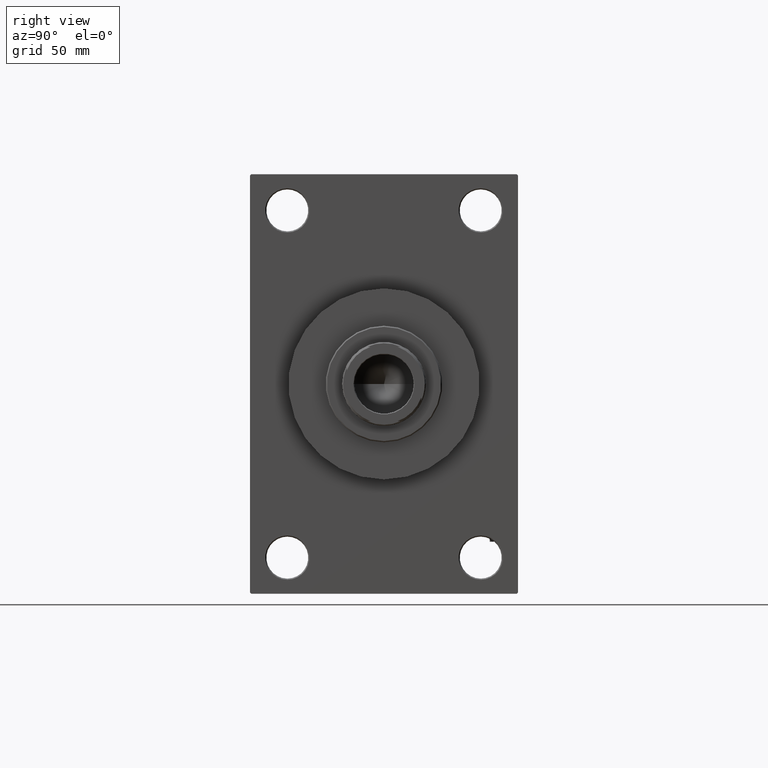
[diagram: clean part render]
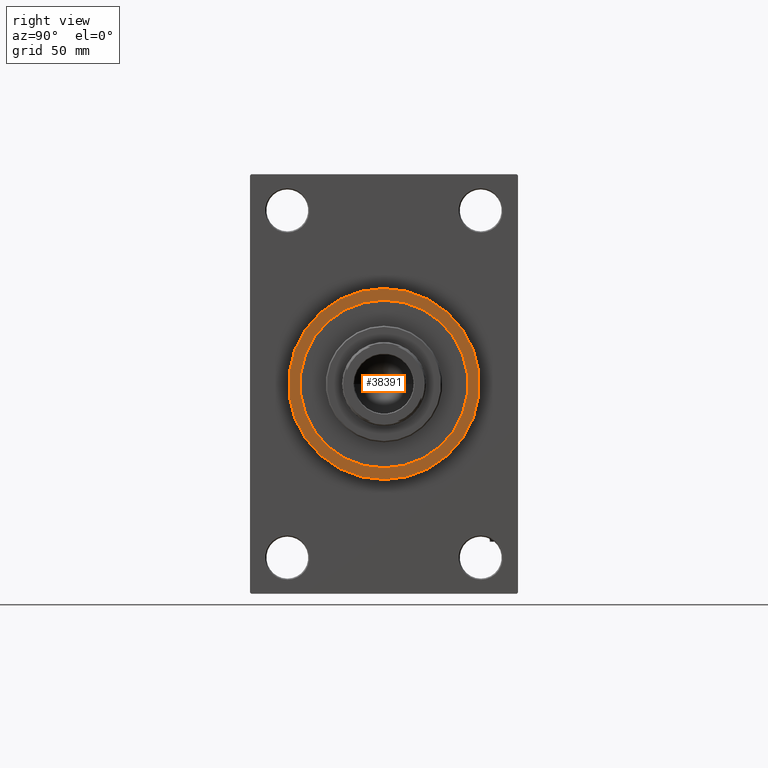
[diagram: same view with one face highlighted and labeled with its STEP entity id]
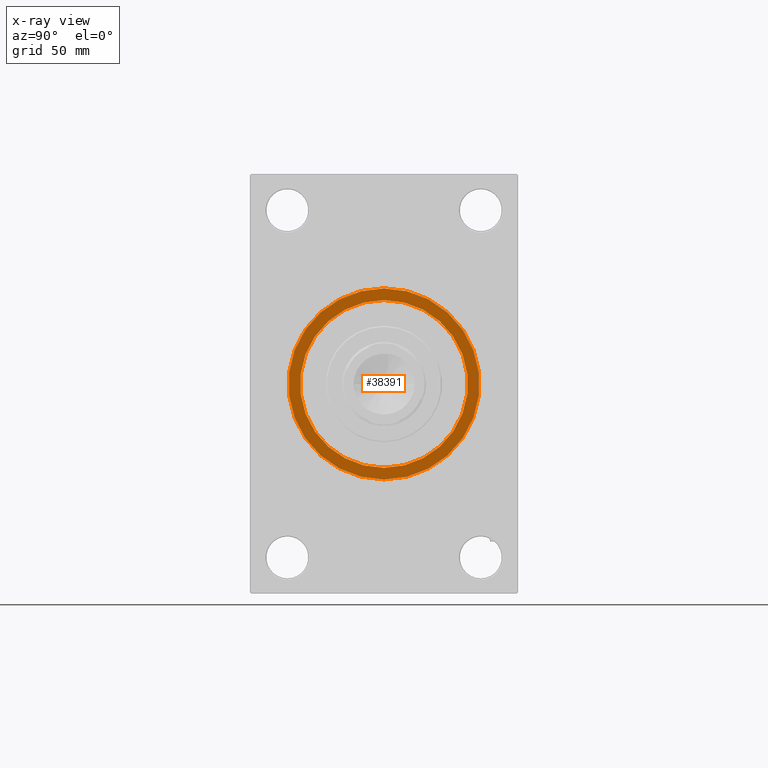
[diagram: x-ray of the same camera — body ghosted, the highlighted face saturated]
A machine part, right view. The second image highlights one B-rep face of the part: STEP entity #38391.
The next image is the same camera in x-ray: the body ghosted, the highlighted face saturated — about 0% of this face is hidden behind the body in this view.
In plain terms, the highlighted planar face has unit normal (1, 0, 0).
Its self-contained STEP definition (entity closure, byte-faithful):
#3732 = DIRECTION ( 'NONE',  ( 1.000000000000000000, 0.000000000000000000, 0.000000000000000000 ) ) ;
#3891 = CARTESIAN_POINT ( 'NONE',  ( 179.0000000000000000, 0.000000000000000000, 0.000000000000000000 ) ) ;
#7057 = VERTEX_POINT ( 'NONE', #8713 ) ;
#8271 = EDGE_CURVE ( 'NONE', #28983, #42483, #22200, .T. ) ;
#8713 = CARTESIAN_POINT ( 'NONE',  ( 179.0000000000000000, 0.000000000000000000, -36.00000000000000000 ) ) ;
#9925 = DIRECTION ( 'NONE',  ( 1.000000000000000000, 0.000000000000000000, 0.000000000000000000 ) ) ;
#12098 = VERTEX_POINT ( 'NONE', #29769 ) ;
#12286 = AXIS2_PLACEMENT_3D ( 'NONE', #43274, #3732, #38516 ) ;
#12574 = ORIENTED_EDGE ( 'NONE', *, *, #15141, .T. ) ;
#15141 = EDGE_CURVE ( 'NONE', #42483, #28983, #44991, .T. ) ;
#15966 = CARTESIAN_POINT ( 'NONE',  ( 179.0000000000000000, 0.000000000000000000, 0.000000000000000000 ) ) ;
#16929 = CIRCLE ( 'NONE', #48324, 36.00000000000000000 ) ;
#17421 = DIRECTION ( 'NONE',  ( 1.000000000000000000, 0.000000000000000000, 0.000000000000000000 ) ) ;
#18869 = ORIENTED_EDGE ( 'NONE', *, *, #21941, .F. ) ;
#19394 = CARTESIAN_POINT ( 'NONE',  ( 179.0000000000000000, 5.021051876504148963E-15, -41.00000000000000000 ) ) ;
#19994 = ORIENTED_EDGE ( 'NONE', *, *, #8271, .T. ) ;
#20866 = ORIENTED_EDGE ( 'NONE', *, *, #27234, .F. ) ;
#21941 = EDGE_CURVE ( 'NONE', #7057, #12098, #16929, .T. ) ;
#22200 = CIRCLE ( 'NONE', #23808, 41.00000000000000000 ) ;
#23152 = FACE_BOUND ( 'NONE', #26701, .T. ) ;
#23544 = DIRECTION ( 'NONE',  ( 0.000000000000000000, 0.000000000000000000, -1.000000000000000000 ) ) ;
#23808 = AXIS2_PLACEMENT_3D ( 'NONE', #3891, #30891, #45484 ) ;
#23891 = FACE_OUTER_BOUND ( 'NONE', #25445, .T. ) ;
#25308 = CIRCLE ( 'NONE', #35729, 36.00000000000000000 ) ;
#25445 = EDGE_LOOP ( 'NONE', ( #12574, #19994 ) ) ;
#26701 = EDGE_LOOP ( 'NONE', ( #18869, #20866 ) ) ;
#26945 = PLANE ( 'NONE',  #12286 ) ;
#27234 = EDGE_CURVE ( 'NONE', #12098, #7057, #25308, .T. ) ;
#28983 = VERTEX_POINT ( 'NONE', #19394 ) ;
#29769 = CARTESIAN_POINT ( 'NONE',  ( 179.0000000000000000, 4.408728476930470856E-15, 36.00000000000000000 ) ) ;
#30891 = DIRECTION ( 'NONE',  ( 1.000000000000000000, 0.000000000000000000, 0.000000000000000000 ) ) ;
#31364 = DIRECTION ( 'NONE',  ( 1.000000000000000000, 0.000000000000000000, 0.000000000000000000 ) ) ;
#32384 = DIRECTION ( 'NONE',  ( 0.000000000000000000, 0.000000000000000000, -1.000000000000000000 ) ) ;
#35648 = CARTESIAN_POINT ( 'NONE',  ( 179.0000000000000000, 0.000000000000000000, 0.000000000000000000 ) ) ;
#35729 = AXIS2_PLACEMENT_3D ( 'NONE', #15966, #31364, #23544 ) ;
#38391 = ADVANCED_FACE ( 'NONE', ( #23152, #23891 ), #26945, .T. ) ;
#38516 = DIRECTION ( 'NONE',  ( 0.000000000000000000, 0.000000000000000000, -1.000000000000000000 ) ) ;
#39341 = AXIS2_PLACEMENT_3D ( 'NONE', #40588, #17421, #47646 ) ;
#40588 = CARTESIAN_POINT ( 'NONE',  ( 179.0000000000000000, 0.000000000000000000, 0.000000000000000000 ) ) ;
#42483 = VERTEX_POINT ( 'NONE', #45165 ) ;
#43274 = CARTESIAN_POINT ( 'NONE',  ( 179.0000000000000000, 0.000000000000000000, 0.000000000000000000 ) ) ;
#44991 = CIRCLE ( 'NONE', #39341, 41.00000000000000000 ) ;
#45165 = CARTESIAN_POINT ( 'NONE',  ( 179.0000000000000000, 0.000000000000000000, 41.00000000000000000 ) ) ;
#45484 = DIRECTION ( 'NONE',  ( 0.000000000000000000, 0.000000000000000000, -1.000000000000000000 ) ) ;
#47646 = DIRECTION ( 'NONE',  ( 0.000000000000000000, 0.000000000000000000, -1.000000000000000000 ) ) ;
#48324 = AXIS2_PLACEMENT_3D ( 'NONE', #35648, #9925, #32384 ) ;